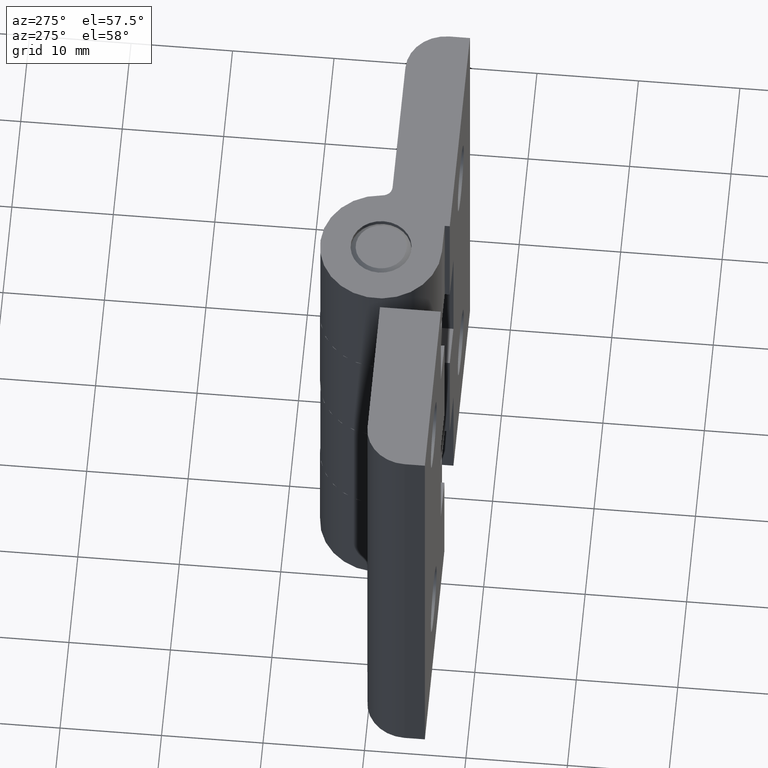
[diagram: clean part render]
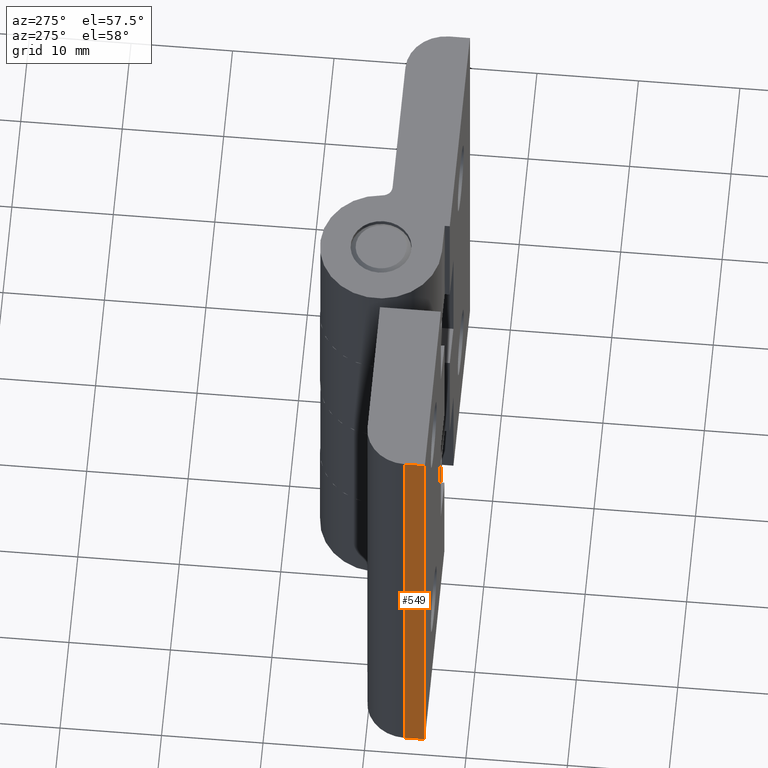
[diagram: same view with one face highlighted and labeled with its STEP entity id]
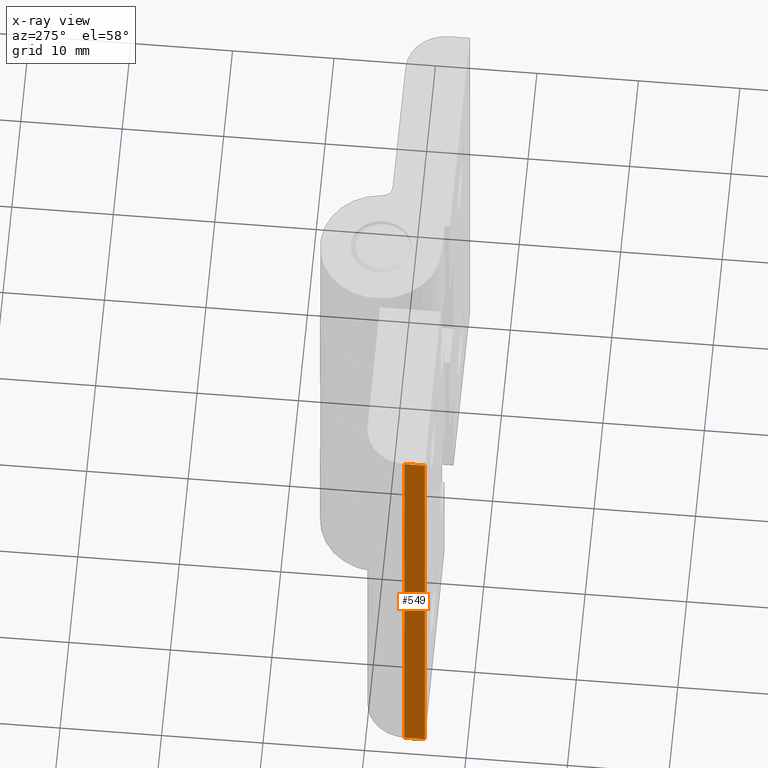
[diagram: x-ray of the same camera — body ghosted, the highlighted face saturated]
A machine part, auxiliary view. The second image highlights one B-rep face of the part: STEP entity #549.
The next image is the same camera in x-ray: the body ghosted, the highlighted face saturated — about 0% of this face is hidden behind the body in this view.
In plain terms, the highlighted planar face has unit normal (1, 0, 0).
Its self-contained STEP definition (entity closure, byte-faithful):
#36=LINE('',#850,#79);
#56=LINE('',#891,#99);
#57=LINE('',#893,#100);
#58=LINE('',#894,#101);
#79=VECTOR('',#667,50.);
#99=VECTOR('',#693,2.);
#100=VECTOR('',#694,2.);
#101=VECTOR('',#695,50.);
#122=PLANE('',#591);
#165=FACE_OUTER_BOUND('',#203,.T.);
#203=EDGE_LOOP('',(#425,#426,#427,#428));
#276=VERTEX_POINT('',#847);
#277=VERTEX_POINT('',#849);
#295=VERTEX_POINT('',#890);
#296=VERTEX_POINT('',#892);
#328=EDGE_CURVE('',#276,#277,#36,.T.);
#349=EDGE_CURVE('',#295,#277,#56,.T.);
#350=EDGE_CURVE('',#296,#276,#57,.T.);
#351=EDGE_CURVE('',#296,#295,#58,.T.);
#425=ORIENTED_EDGE('',*,*,#349,.T.);
#426=ORIENTED_EDGE('',*,*,#328,.F.);
#427=ORIENTED_EDGE('',*,*,#350,.F.);
#428=ORIENTED_EDGE('',*,*,#351,.T.);
#549=ADVANCED_FACE('',(#165),#122,.F.);
#591=AXIS2_PLACEMENT_3D('',#889,#691,#692);
#667=DIRECTION('',(0.,0.,-1.));
#691=DIRECTION('center_axis',(1.,0.,0.));
#692=DIRECTION('ref_axis',(0.,0.,-1.));
#693=DIRECTION('',(0.,-1.,0.));
#694=DIRECTION('',(0.,-1.,0.));
#695=DIRECTION('',(0.,0.,-1.));
#847=CARTESIAN_POINT('',(-25.,0.,25.));
#849=CARTESIAN_POINT('',(-25.,0.,-25.));
#850=CARTESIAN_POINT('',(-25.,0.,25.));
#889=CARTESIAN_POINT('Origin',(-25.,2.,25.));
#890=CARTESIAN_POINT('',(-25.,2.,-25.));
#891=CARTESIAN_POINT('',(-25.,2.,-25.));
#892=CARTESIAN_POINT('',(-25.,2.,25.));
#893=CARTESIAN_POINT('',(-25.,2.,25.));
#894=CARTESIAN_POINT('',(-25.,2.,25.));